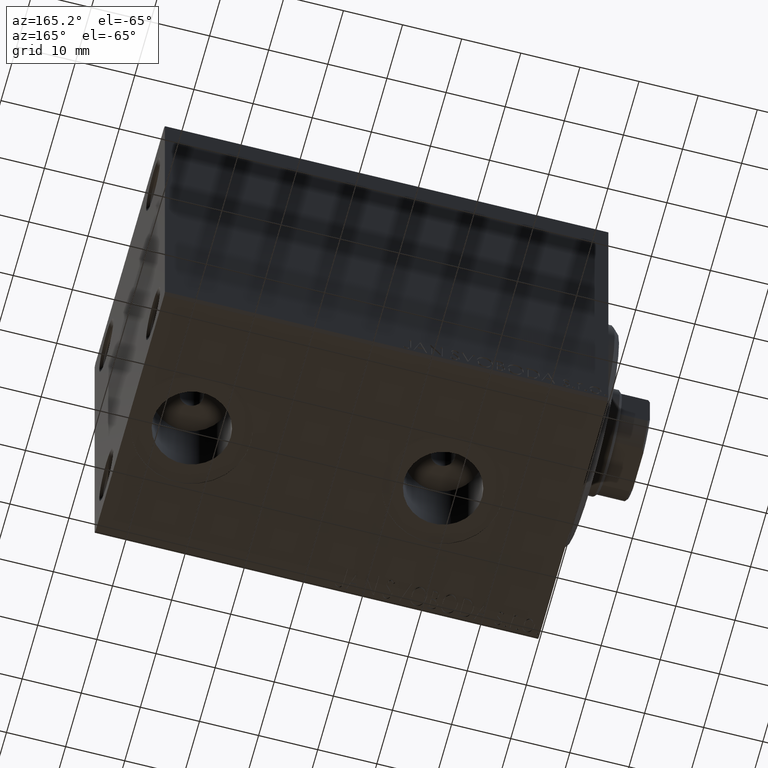
[diagram: clean part render]
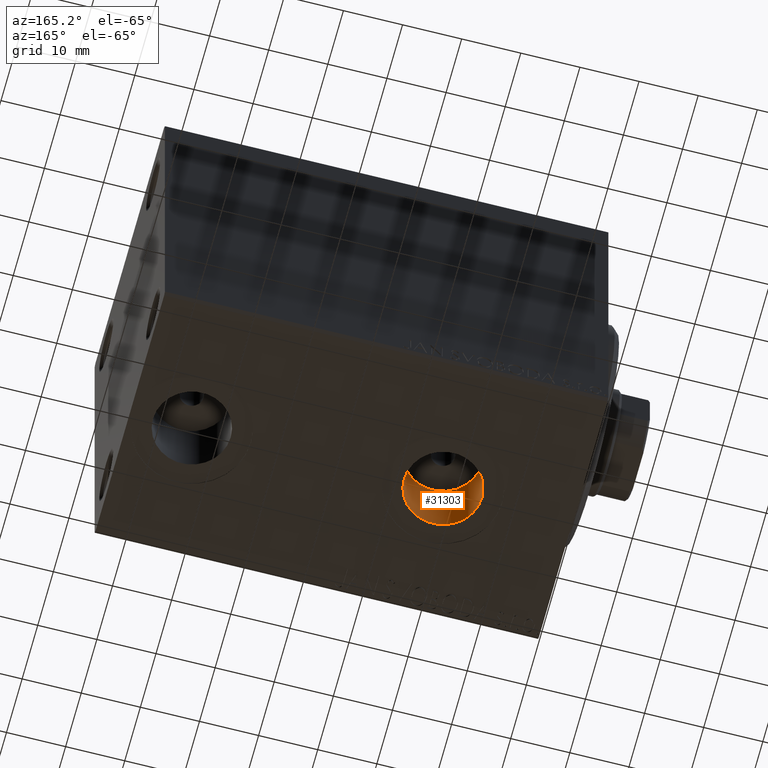
[diagram: same view with one face highlighted and labeled with its STEP entity id]
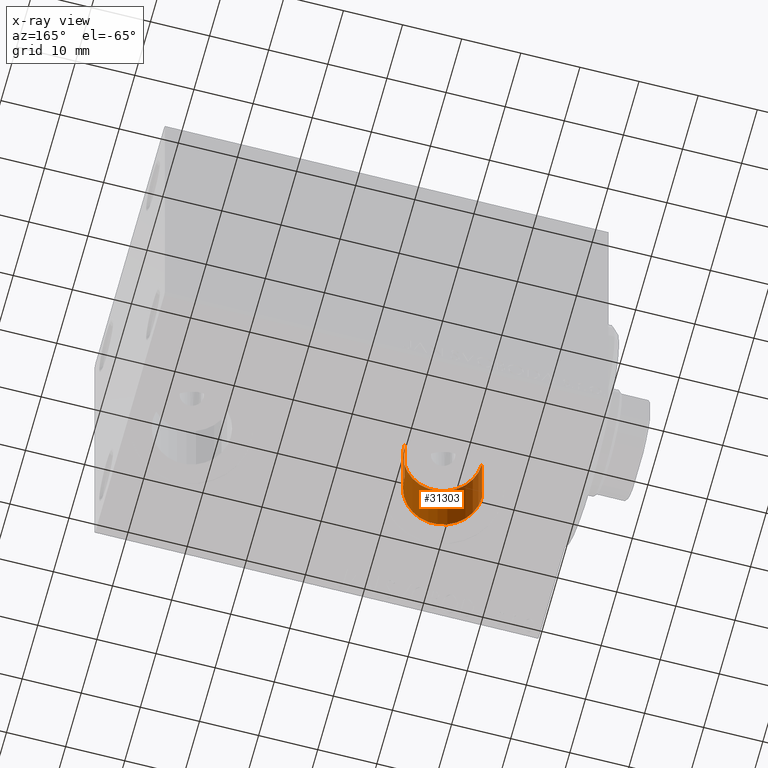
[diagram: x-ray of the same camera — body ghosted, the highlighted face saturated]
A machine part, auxiliary view. The second image highlights one B-rep face of the part: STEP entity #31303.
The next image is the same camera in x-ray: the body ghosted, the highlighted face saturated — about 0% of this face is hidden behind the body in this view.
In plain terms, the highlighted cylindrical surface (partial cylindrical patch) has radius 6.58 mm, axis along (-0, -0, -1).
Its self-contained STEP definition (entity closure, byte-faithful):
#106 = EDGE_CURVE ( 'NONE', #33020, #31689, #39898, .T. ) ;
#375 = CARTESIAN_POINT ( 'NONE',  ( 15.41999999999999638, -2.910683231281019398E-15, -19.50000000000000355 ) ) ;
#895 = CARTESIAN_POINT ( 'NONE',  ( 28.58000000000000185, -2.104865637442060750E-15, -32.40000000000000568 ) ) ;
#3161 = EDGE_CURVE ( 'NONE', #31689, #33146, #27518, .T. ) ;
#4851 = CARTESIAN_POINT ( 'NONE',  ( 28.58000000000000185, -2.104865637442060750E-15, -19.50000000000000355 ) ) ;
#4956 = CIRCLE ( 'NONE', #6433, 6.580000000000002736 ) ;
#5478 = CARTESIAN_POINT ( 'NONE',  ( 15.41999999999999638, -2.910683231281019398E-15, -32.40000000000000568 ) ) ;
#6433 = AXIS2_PLACEMENT_3D ( 'NONE', #17243, #20009, #31297 ) ;
#7377 = EDGE_CURVE ( 'NONE', #31914, #33146, #7713, .T. ) ;
#7580 = CARTESIAN_POINT ( 'NONE',  ( 28.58000000000000185, -2.104865637442060750E-15, -19.50000000000000355 ) ) ;
#7713 = LINE ( 'NONE', #28021, #13639 ) ;
#8038 = ORIENTED_EDGE ( 'NONE', *, *, #3161, .T. ) ;
#9333 = EDGE_CURVE ( 'NONE', #33020, #31914, #4956, .T. ) ;
#13639 = VECTOR ( 'NONE', #14865, 1000.000000000000000 ) ;
#14865 = DIRECTION ( 'NONE',  ( -0.000000000000000000, -0.000000000000000000, -1.000000000000000000 ) ) ;
#15532 = ORIENTED_EDGE ( 'NONE', *, *, #9333, .F. ) ;
#16751 = CARTESIAN_POINT ( 'NONE',  ( 22.00000000000000000, -2.910683231281019398E-15, -19.50000000000000355 ) ) ;
#17243 = CARTESIAN_POINT ( 'NONE',  ( 22.00000000000000000, -2.910683231281019398E-15, -19.50000000000000355 ) ) ;
#17448 = DIRECTION ( 'NONE',  ( -0.000000000000000000, -0.000000000000000000, -1.000000000000000000 ) ) ;
#20009 = DIRECTION ( 'NONE',  ( 0.000000000000000000, 0.000000000000000000, -1.000000000000000000 ) ) ;
#20903 = FACE_OUTER_BOUND ( 'NONE', #36018, .T. ) ;
#21506 = ORIENTED_EDGE ( 'NONE', *, *, #106, .T. ) ;
#21679 = DIRECTION ( 'NONE',  ( -0.000000000000000000, -0.000000000000000000, -1.000000000000000000 ) ) ;
#24583 = AXIS2_PLACEMENT_3D ( 'NONE', #39776, #36312, #28938 ) ;
#26788 = VECTOR ( 'NONE', #21679, 1000.000000000000000 ) ;
#27518 = CIRCLE ( 'NONE', #24583, 6.580000000000002736 ) ;
#28021 = CARTESIAN_POINT ( 'NONE',  ( 15.41999999999999638, -2.910683231281019398E-15, -19.50000000000000355 ) ) ;
#28938 = DIRECTION ( 'NONE',  ( -1.000000000000000000, 0.000000000000000000, 0.000000000000000000 ) ) ;
#31297 = DIRECTION ( 'NONE',  ( -1.000000000000000000, 0.000000000000000000, 0.000000000000000000 ) ) ;
#31303 = ADVANCED_FACE ( 'NONE', ( #20903 ), #45106, .F. ) ;
#31652 = AXIS2_PLACEMENT_3D ( 'NONE', #16751, #17448, #41893 ) ;
#31689 = VERTEX_POINT ( 'NONE', #895 ) ;
#31914 = VERTEX_POINT ( 'NONE', #375 ) ;
#33020 = VERTEX_POINT ( 'NONE', #7580 ) ;
#33146 = VERTEX_POINT ( 'NONE', #5478 ) ;
#36018 = EDGE_LOOP ( 'NONE', ( #15532, #21506, #8038, #42924 ) ) ;
#36312 = DIRECTION ( 'NONE',  ( 0.000000000000000000, 0.000000000000000000, -1.000000000000000000 ) ) ;
#39776 = CARTESIAN_POINT ( 'NONE',  ( 22.00000000000000000, -2.910683231281019398E-15, -32.40000000000000568 ) ) ;
#39898 = LINE ( 'NONE', #4851, #26788 ) ;
#41893 = DIRECTION ( 'NONE',  ( -1.000000000000000000, 0.000000000000000000, 0.000000000000000000 ) ) ;
#42924 = ORIENTED_EDGE ( 'NONE', *, *, #7377, .F. ) ;
#45106 = CYLINDRICAL_SURFACE ( 'NONE', #31652, 6.580000000000002736 ) ;